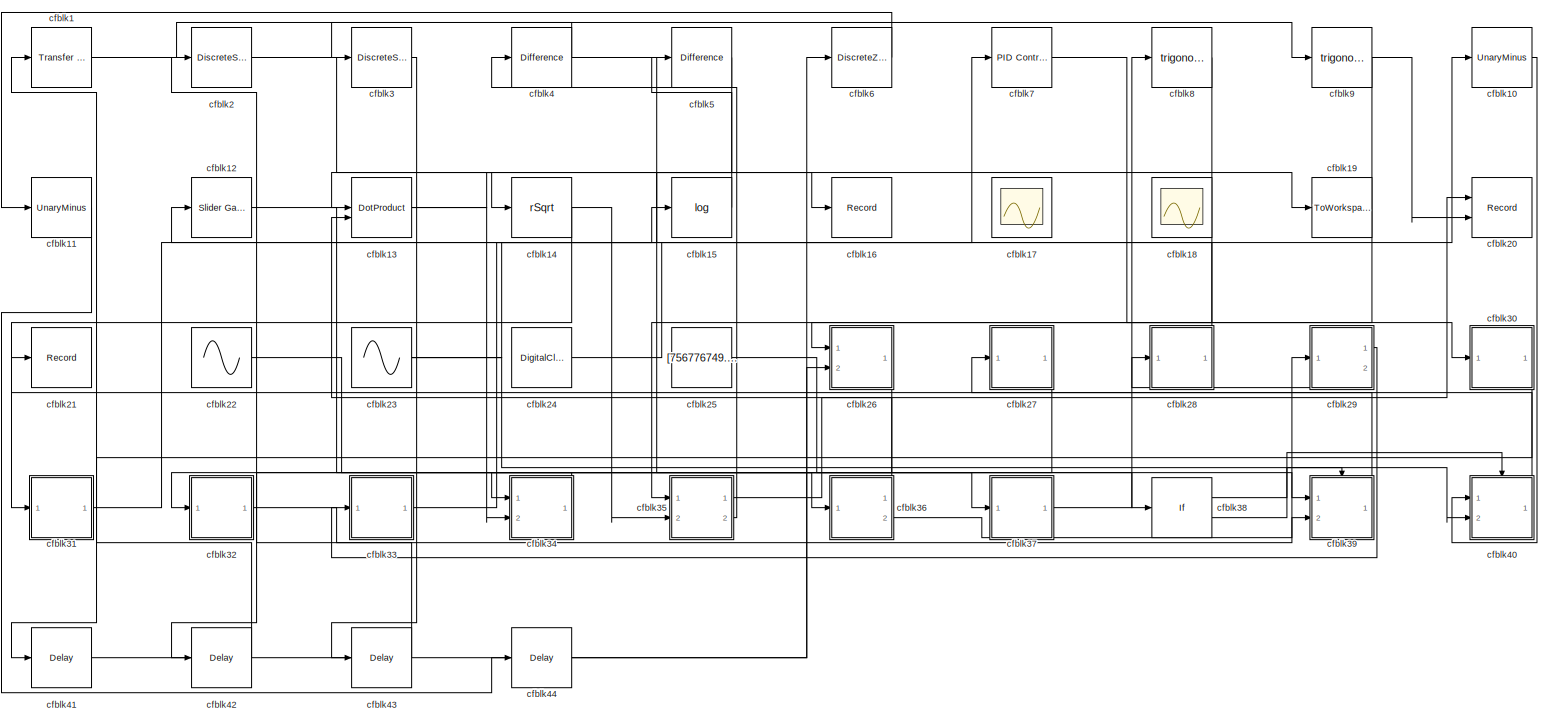
[diagram: root canvas - part 1/1, most of the canvas]
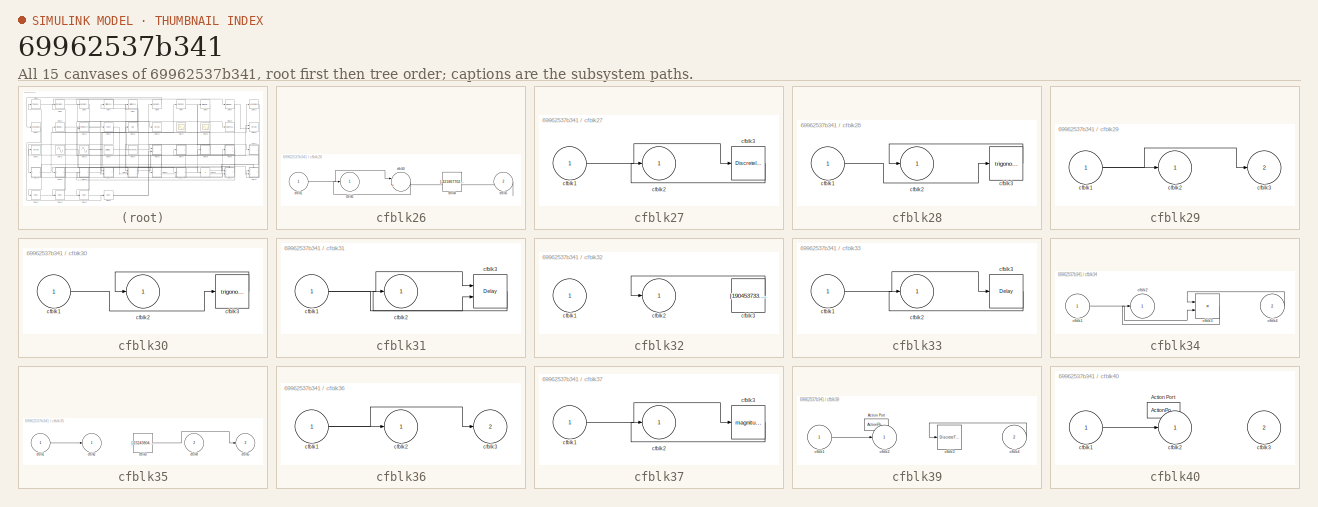
[diagram: thumbnail index - all 15 canvases of the model, root first then tree order]
MODEL slx_69962537b341
KIND model
CONFIG AbsTol = auto
CONFIG EnableMultiTasking = off
CONFIG FixedStep = auto
CONFIG MaxStep = auto
CONFIG MinStep = auto
CONFIG RelTol = 1e-3
CONFIG SampleTimeConstraint = Unconstrained
CONFIG SolverName = VariableStepAuto
CONFIG StartTime = 0.0
CONFIG StopTime = 10.0
BLOCK [Reference] cfblk1  REF=simulink/Discrete/Transfer Fcn
Real Zero
  Ports = [1, 1]
  SourceBlock = simulink/Discrete/Transfer Fcn\nReal Zero
  SourceProductBaseCode = SL
  SourceType = Transfer Fcn Real Zero
BLOCK [UnaryMinus] cfblk10
BLOCK [UnaryMinus] cfblk11
BLOCK [Reference] cfblk12  REF=simulink/Math
Operations/Slider
Gain
  Ports = [1, 1]
  SourceBlock = simulink/Math\nOperations/Slider\nGain
  SourceProductBaseCode = SL
  SourceType = Slider Gain
BLOCK [DotProduct] cfblk13
  OutDataTypeStr = Inherit: Inherit via internal rule
BLOCK [Sqrt] cfblk14
  AlgorithmType = Newton-Raphson
  Operator = rSqrt
BLOCK [Math] cfblk15
  Operator = log
  Ports = [1, 1]
BLOCK [Record] cfblk16
  FileSettingsInternal = {"entries":[{"content":{"excelSettings":{"content":{},"type":"Streamout.ExcelSettings"}},"type":"Streamout.FileSettingStorage","uuid":"ddb8cd18-c12f-4860-9dfc-a54a25d37713"}],"packageUris":["http://schema.mathworks.com/mf0/streamout_blocks/R2020a"],"version":"1.0"}
  Ports = [1]
  SignalsInternal = {"entries":[{"content":{"signals":[{"content":{"blockPath":["sampleModel105/cfblk16"],"channel":[],"dimensions":[1],"domain":"sampleModel105/cfblk16","lineColor":"#139fff","plots":[1],"port":1,"sid":[""],"signalID":3763,"signalName":"cfblk31"},"type":"RecordBlkView.Signal","uuid":"9e456cbc-cfe6-47fb-a5ca-52251a168298"}]},"type":"RecordBlkView.InputSignals","uuid":"aff188d9-79ce-495a-83b5-9f3deef27...<+97ch>
  VisualizationBindings = {"sparklinesplugin":{"info":[{"bindingParametersList":[],"subplotID":1}]}}
BLOCK [Scope] cfblk17
  Floating = on
  NumInputPorts = 1
  Ports = []
BLOCK [Scope] cfblk18
  Floating = on
  NumInputPorts = 1
  Ports = []
BLOCK [ToWorkspace] cfblk19
  FixptAsFi = on
  MaxDataPoints = inf
  Ports = [1]
  SampleTime = -1
  SaveFormat = Timeseries
  VariableName = zucsuiq
BLOCK [DiscreteStateSpace] cfblk2
BLOCK [Record] cfblk20
  CompatibilityTag = XY
  FileSettingsInternal = {"entries":[{"content":{"excelSettings":{"content":{},"type":"Streamout.ExcelSettings"}},"type":"Streamout.FileSettingStorage","uuid":"994706bd-350c-4b66-ae42-702c58b05930"}],"packageUris":["http://schema.mathworks.com/mf0/streamout_blocks/R2020a"],"version":"1.0"}
  Layout = [1 1]
  Ports = [2]
  SignalsInternal = {"entries":[{"content":{"signals":[{"content":{"blockPath":["sampleModel105/cfblk20"],"channel":[],"dimensions":[1],"domain":"sampleModel105/cfblk20","lineColor":"#a2142f","plots":[1],"port":1,"sid":[""],"signalID":3767,"signalName":"cfblk35:1"},"type":"RecordBlkView.Signal","uuid":"5d14dbdc-6690-4294-8c36-7d91aadc88e1"},{"content":{"blockPath":["sampleModel105/cfblk20"],"channel":[],"dimensions":...<+384ch>
  VisualizationBindings = {"xyplotplugin":{"info":[{"series":[{"bindingParametersList":[{"parameter":"X-Axis","signalID":3767,"signalName":"cfblk35:1"},{"parameter":"Y-Axis","signalID":3771,"signalName":"cfblk9"}],"seriesID":40349}],"subplotID":1}]}}
BLOCK [Record] cfblk21
  FileSettingsInternal = {"entries":[{"content":{"excelSettings":{"content":{},"type":"Streamout.ExcelSettings"}},"type":"Streamout.FileSettingStorage","uuid":"5933467f-9b3e-48b0-a70a-d69cf6b792e4"}],"packageUris":["http://schema.mathworks.com/mf0/streamout_blocks/R2020a"],"version":"1.0"}
  Ports = [1]
  SignalsInternal = {"entries":[{"content":{"signals":[{"content":{"blockPath":["sampleModel105/cfblk21"],"channel":[],"dimensions":[1],"domain":"sampleModel105/cfblk21","lineColor":"#64d413","plots":[1],"port":1,"sid":[""],"signalID":3775,"signalName":"cfblk39"},"type":"RecordBlkView.Signal","uuid":"a37ccbd4-b422-4b4a-b4e3-4f464335f5ed"}]},"type":"RecordBlkView.InputSignals","uuid":"58064e48-9d8c-465b-afa7-76fbacd90...<+97ch>
  VisualizationBindings = {"sparklinesplugin":{"info":[{"bindingParametersList":[],"subplotID":1}]}}
BLOCK [Sin] cfblk22
  Amplitude = [-767424050.346125]
  Bias = [-835202544.740925]
  Ports = [0, 1]
  SampleTime = 0
BLOCK [Sin] cfblk23
  Amplitude = [-580302716.894803]
  Bias = [-692271995.278135]
  Ports = [0, 1]
  SampleTime = 0
BLOCK [DigitalClock] cfblk24
BLOCK [Constant] cfblk25
  SampleTime = 1
  Value = [756776749.874336]
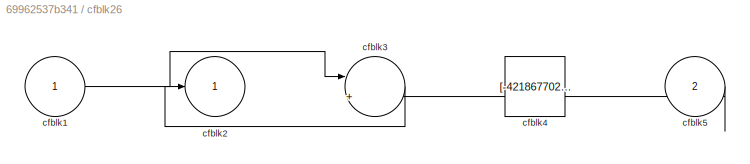
BLOCK [SubSystem] cfblk26
  Ports = [2, 1]
  RequestExecContextInheritance = off
BLOCK [Inport] cfblk26/cfblk1
BLOCK [Outport] cfblk26/cfblk2
BLOCK [Sum] cfblk26/cfblk3
  Inputs = |++
  Ports = [2, 1]
BLOCK [Constant] cfblk26/cfblk4
  SampleTime = 1
  Value = [-421867702.977675]
BLOCK [Inport] cfblk26/cfblk5
  Port = 2
BLOCK [SubSystem] cfblk27
  Ports = [1, 1]
  RequestExecContextInheritance = off
BLOCK [Inport] cfblk27/cfblk1
BLOCK [Outport] cfblk27/cfblk2
BLOCK [DiscreteIntegrator] cfblk27/cfblk3
  ICPrevOutput = DiscIntNeverNeededParam
  ICPrevScaledInput = DiscIntNeverNeededParam
  InitialConditionSetting = Auto
  Ports = [1, 1]
BLOCK [SubSystem] cfblk28
  Ports = [1, 1]
  RequestExecContextInheritance = off
BLOCK [Inport] cfblk28/cfblk1
BLOCK [Outport] cfblk28/cfblk2
BLOCK [Trigonometry] cfblk28/cfblk3
  Ports = [1, 1]
BLOCK [SubSystem] cfblk29
  Ports = [1, 2]
  RequestExecContextInheritance = off
BLOCK [Inport] cfblk29/cfblk1
BLOCK [Outport] cfblk29/cfblk2
BLOCK [Outport] cfblk29/cfblk3
  Port = 2
BLOCK [DiscreteStateSpace] cfblk3
BLOCK [SubSystem] cfblk30
  Ports = [1, 1]
  RequestExecContextInheritance = off
BLOCK [Inport] cfblk30/cfblk1
BLOCK [Outport] cfblk30/cfblk2
BLOCK [Trigonometry] cfblk30/cfblk3
  Ports = [1, 1]
BLOCK [SubSystem] cfblk31
  Ports = [1, 1]
  RequestExecContextInheritance = off
BLOCK [Inport] cfblk31/cfblk1
BLOCK [Outport] cfblk31/cfblk2
BLOCK [Delay] cfblk31/cfblk3
  DelayLengthSource = Input port
  InputPortMap = u0,p1
  Ports = [2, 1]
  SampleTime = 1
BLOCK [SubSystem] cfblk32
  Ports = [1, 1]
  RequestExecContextInheritance = off
BLOCK [Inport] cfblk32/cfblk1
BLOCK [Outport] cfblk32/cfblk2
BLOCK [Constant] cfblk32/cfblk3
  SampleTime = 1
  Value = [190453733.279844]
BLOCK [SubSystem] cfblk33
  Ports = [1, 1]
  RequestExecContextInheritance = off
BLOCK [Inport] cfblk33/cfblk1
BLOCK [Outport] cfblk33/cfblk2
BLOCK [Delay] cfblk33/cfblk3
  InputPortMap = u0
  Ports = [1, 1]
  SampleTime = 1
BLOCK [SubSystem] cfblk34
  Ports = [2, 1]
  RequestExecContextInheritance = off
BLOCK [Inport] cfblk34/cfblk1
BLOCK [Outport] cfblk34/cfblk2
BLOCK [Product] cfblk34/cfblk3
  Ports = [2, 1]
BLOCK [Inport] cfblk34/cfblk4
  Port = 2
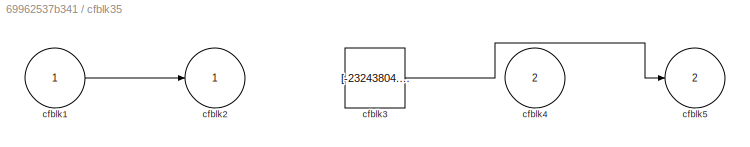
BLOCK [SubSystem] cfblk35
  Ports = [2, 2]
  RequestExecContextInheritance = off
BLOCK [Inport] cfblk35/cfblk1
BLOCK [Outport] cfblk35/cfblk2
BLOCK [Constant] cfblk35/cfblk3
  SampleTime = 1
  Value = [-23243804.215599]
BLOCK [Inport] cfblk35/cfblk4
  Port = 2
BLOCK [Outport] cfblk35/cfblk5
  Port = 2
BLOCK [SubSystem] cfblk36
  Ports = [1, 2]
  RequestExecContextInheritance = off
BLOCK [Inport] cfblk36/cfblk1
BLOCK [Outport] cfblk36/cfblk2
BLOCK [Outport] cfblk36/cfblk3
  Port = 2
BLOCK [SubSystem] cfblk37
  Ports = [1, 1]
  RequestExecContextInheritance = off
BLOCK [Inport] cfblk37/cfblk1
BLOCK [Outport] cfblk37/cfblk2
BLOCK [Math] cfblk37/cfblk3
  Operator = magnitude^2
  Ports = [1, 1]
BLOCK [If] cfblk38
  IfExpression = u1 >= 0
  Ports = [1, 2]
  SampleTime = 1
BLOCK [SubSystem] cfblk39
  Ports = [2, 1, 0, 0, 0, 0, 0, 1]
  RequestExecContextInheritance = off
  TreatAsAtomicUnit = on
BLOCK [ActionPort] cfblk39/Action Port
  ActionPortLabel = if(u1 >= 0)
BLOCK [Inport] cfblk39/cfblk1
BLOCK [Outport] cfblk39/cfblk2
BLOCK [DiscreteTransferFcn] cfblk39/cfblk3
  InputPortMap = u0
  Ports = [1, 1]
BLOCK [Inport] cfblk39/cfblk4
  Port = 2
BLOCK [Reference] cfblk4  REF=simulink/Discrete/Difference
  Ports = [1, 1]
  SourceBlock = simulink/Discrete/Difference
  SourceProductBaseCode = SL
  SourceType = Difference
BLOCK [SubSystem] cfblk40
  Ports = [2, 1, 0, 0, 0, 0, 0, 1]
  RequestExecContextInheritance = off
  TreatAsAtomicUnit = on
BLOCK [ActionPort] cfblk40/Action Port
  ActionPortLabel = else
BLOCK [Inport] cfblk40/cfblk1
BLOCK [Outport] cfblk40/cfblk2
BLOCK [Inport] cfblk40/cfblk3
  Port = 2
BLOCK [Delay] cfblk41
  InputPortMap = u0
  Ports = [1, 1]
  SampleTime = 1
BLOCK [Delay] cfblk42
  InputPortMap = u0
  Ports = [1, 1]
  SampleTime = 1
BLOCK [Delay] cfblk43
  InputPortMap = u0
  Ports = [1, 1]
  SampleTime = 1
BLOCK [Delay] cfblk44
  InputPortMap = u0
  Ports = [1, 1]
  SampleTime = 1
BLOCK [Reference] cfblk5  REF=simulink/Discrete/Difference
  Ports = [1, 1]
  SourceBlock = simulink/Discrete/Difference
  SourceProductBaseCode = SL
  SourceType = Difference
BLOCK [DiscreteZeroPole] cfblk6
  Gain = 1
  Poles = [0 0.5]
BLOCK [Reference] cfblk7  REF=slpidlib/PID Controller
  Ports = [1, 1]
  SourceBlock = slpidlib/PID Controller
  SourceProductBaseCode = SL
  SourceType = PID 1dof
BLOCK [Trigonometry] cfblk8
  Ports = [1, 1]
BLOCK [Trigonometry] cfblk9
  Ports = [1, 1]
LINE cfblk10:1 -> cfblk40:1
LINE cfblk11:1 -> cfblk44:1
LINE cfblk12:1 -> cfblk38:1
NET cfblk13:1 -> cfblk19:1, cfblk34:2
NET cfblk14:1 -> cfblk31:1, cfblk35:2
LINE cfblk15:1 -> cfblk5:1
LINE cfblk1:1 -> cfblk9:1
LINE cfblk22:1 -> cfblk39:1
NET cfblk23:1 -> cfblk15:1, cfblk40:2
LINE cfblk24:1 -> cfblk10:1
LINE cfblk25:1 -> cfblk37:1
LINE cfblk26/cfblk1:1 -> cfblk26/cfblk3:1
LINE cfblk26/cfblk3:1 -> cfblk26/cfblk2:1
LINE cfblk26/cfblk5:1 -> cfblk26/cfblk3:2
LINE cfblk26:1 -> cfblk34:1
LINE cfblk27/cfblk1:1 -> cfblk27/cfblk3:1
LINE cfblk27/cfblk3:1 -> cfblk27/cfblk2:1
LINE cfblk27:1 -> cfblk42:1
LINE cfblk28/cfblk1:1 -> cfblk28/cfblk3:1
LINE cfblk28/cfblk3:1 -> cfblk28/cfblk2:1
LINE cfblk28:1 -> cfblk12:1
NET cfblk29/cfblk1:1 -> cfblk29/cfblk2:1, cfblk29/cfblk3:1
LINE cfblk29:1 -> cfblk33:1
LINE cfblk29:2 -> cfblk28:1
LINE cfblk2:1 -> cfblk14:1
LINE cfblk30/cfblk1:1 -> cfblk30/cfblk3:1
LINE cfblk30/cfblk3:1 -> cfblk30/cfblk2:1
LINE cfblk30:1 -> cfblk41:1
NET cfblk31/cfblk1:1 -> cfblk31/cfblk3:1, cfblk31/cfblk3:2
LINE cfblk31/cfblk3:1 -> cfblk31/cfblk2:1
LINE cfblk31:1 -> cfblk16:1
LINE cfblk32/cfblk3:1 -> cfblk32/cfblk2:1
LINE cfblk32:1 -> cfblk29:1
LINE cfblk33/cfblk1:1 -> cfblk33/cfblk3:1
LINE cfblk33/cfblk3:1 -> cfblk33/cfblk2:1
LINE cfblk33:1 -> cfblk7:1
LINE cfblk34/cfblk1:1 -> cfblk34/cfblk3:2
LINE cfblk34/cfblk3:1 -> cfblk34/cfblk2:1
LINE cfblk34/cfblk4:1 -> cfblk34/cfblk3:1
LINE cfblk34:1 -> cfblk32:1
LINE cfblk35/cfblk1:1 -> cfblk35/cfblk2:1
LINE cfblk35/cfblk3:1 -> cfblk35/cfblk5:1
LINE cfblk35:1 -> cfblk20:1
LINE cfblk35:2 -> cfblk4:1
NET cfblk36/cfblk1:1 -> cfblk36/cfblk2:1, cfblk36/cfblk3:1
LINE cfblk36:1 -> cfblk13:2
LINE cfblk36:2 -> cfblk39:2
LINE cfblk37/cfblk1:1 -> cfblk37/cfblk3:1
LINE cfblk37/cfblk3:1 -> cfblk37/cfblk2:1
LINE cfblk37:1 -> cfblk8:1
LINE cfblk38:1 -> cfblk39:ifaction
LINE cfblk38:2 -> cfblk40:ifaction
LINE cfblk39/cfblk1:1 -> cfblk39/cfblk2:1
LINE cfblk39/cfblk4:1 -> cfblk39/cfblk3:1
LINE cfblk39:1 -> cfblk21:1
LINE cfblk3:1 -> cfblk43:1
LINE cfblk40/cfblk1:1 -> cfblk40/cfblk2:1
LINE cfblk40:1 -> cfblk27:1
LINE cfblk41:1 -> cfblk26:2
LINE cfblk42:1 -> cfblk1:1
LINE cfblk43:1 -> cfblk2:1
LINE cfblk44:1 -> cfblk6:1
NET cfblk4:1 -> cfblk36:1, cfblk3:1
LINE cfblk5:1 -> cfblk13:1
LINE cfblk6:1 -> cfblk11:1
LINE cfblk7:1 -> cfblk30:1
LINE cfblk8:1 -> cfblk35:1
NET cfblk9:1 -> cfblk20:2, cfblk26:1
note: NET lines group one-source signal fan-out (src -> all destinations, sorted); 1:1 wires keep LINE
